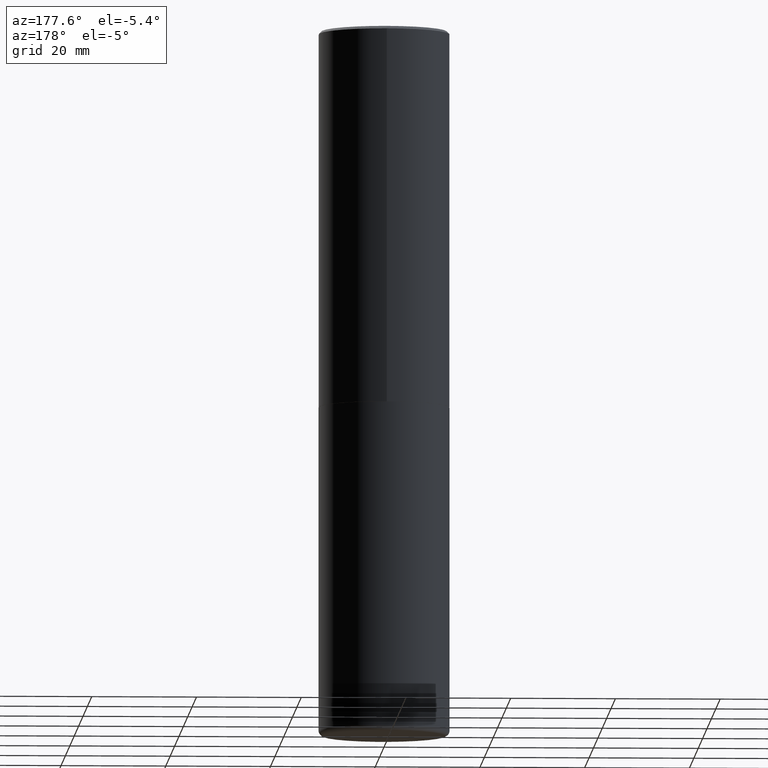
[diagram: clean part render]
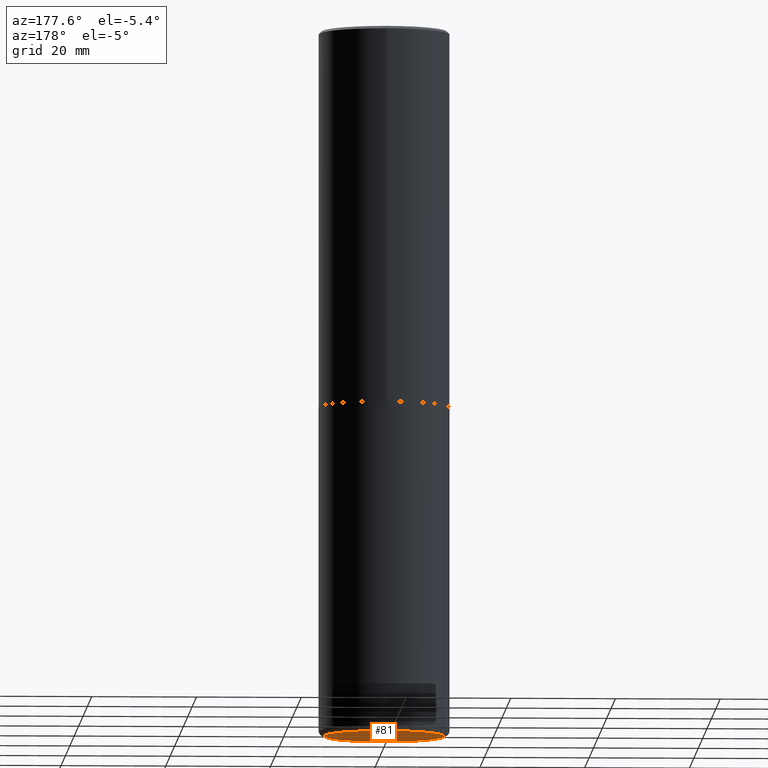
[diagram: same view with one face highlighted and labeled with its STEP entity id]
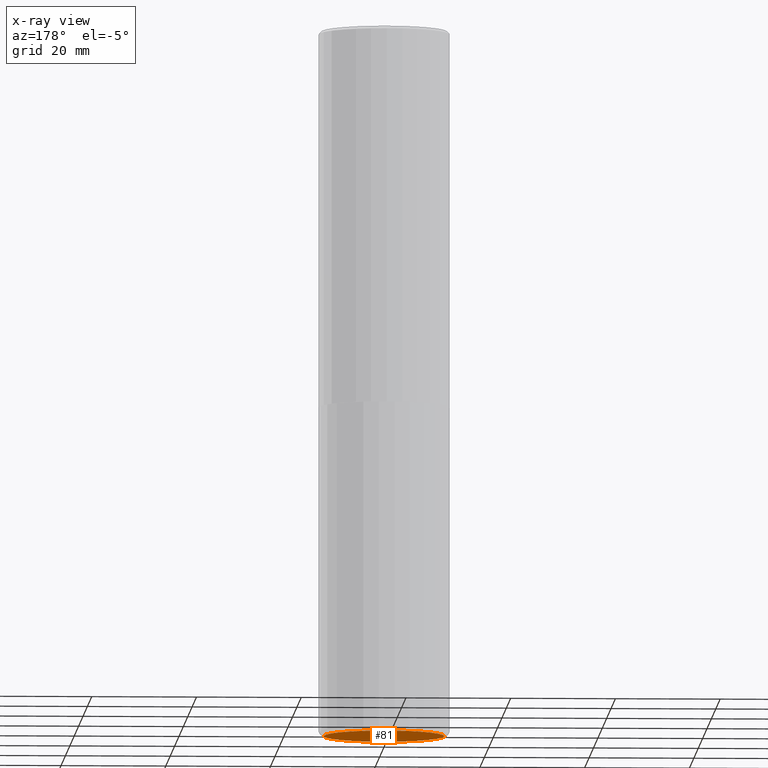
[diagram: x-ray of the same camera — body ghosted, the highlighted face saturated]
A machine part, auxiliary view. The second image highlights one B-rep face of the part: STEP entity #81.
The next image is the same camera in x-ray: the body ghosted, the highlighted face saturated — about 0% of this face is hidden behind the body in this view.
In plain terms, the highlighted planar face has unit normal (0, -0, -1).
Its self-contained STEP definition (entity closure, byte-faithful):
#62 = DIRECTION ( 'NONE',  ( 2.438088387897960049E-29, -3.491481338843145188E-15, -1.000000000000000000 ) ) ;
#78 = EDGE_CURVE ( 'NONE', #289, #105, #287, .T. ) ;
#81 = ADVANCED_FACE ( 'NONE', ( #392 ), #356, .T. ) ;
#105 = VERTEX_POINT ( 'NONE', #221 ) ;
#120 = CARTESIAN_POINT ( 'NONE',  ( 1.299766670487400442E-28, -1.855722331595132604E-14, -5.315000000000001279 ) ) ;
#122 = DIRECTION ( 'NONE',  ( -2.445468806185136597E-29, 3.491481338843145583E-15, 1.000000000000000000 ) ) ;
#144 = EDGE_CURVE ( 'NONE', #105, #289, #184, .T. ) ;
#147 = AXIS2_PLACEMENT_3D ( 'NONE', #166, #62, #188 ) ;
#152 = ORIENTED_EDGE ( 'NONE', *, *, #144, .F. ) ;
#166 = CARTESIAN_POINT ( 'NONE',  ( 4.039873082139847440E-29, -3.138529362965696164E-14, -5.315000000000001279 ) ) ;
#184 = CIRCLE ( 'NONE', #381, 0.4527499999999999858 ) ;
#188 = DIRECTION ( 'NONE',  ( -1.000000000000000000, 6.982962677686265922E-15, -4.876176775795935793E-29 ) ) ;
#194 = CARTESIAN_POINT ( 'NONE',  ( 1.299766670487400442E-28, -1.855722331595132604E-14, -5.315000000000001279 ) ) ;
#221 = CARTESIAN_POINT ( 'NONE',  ( 0.4527499999999999858, -2.171875966827378497E-14, -5.315000000000001279 ) ) ;
#239 = ORIENTED_EDGE ( 'NONE', *, *, #78, .F. ) ;
#262 = DIRECTION ( 'NONE',  ( -2.445468806185136597E-29, 3.491481338843145583E-15, 1.000000000000000000 ) ) ;
#275 = EDGE_LOOP ( 'NONE', ( #152, #239 ) ) ;
#287 = CIRCLE ( 'NONE', #310, 0.4527499999999999858 ) ;
#289 = VERTEX_POINT ( 'NONE', #409 ) ;
#310 = AXIS2_PLACEMENT_3D ( 'NONE', #194, #262, #362 ) ;
#330 = DIRECTION ( 'NONE',  ( 1.000000000000000000, -6.982962677686269077E-15, 0.000000000000000000 ) ) ;
#356 = PLANE ( 'NONE',  #147 ) ;
#362 = DIRECTION ( 'NONE',  ( 1.000000000000000000, -6.982962677686269077E-15, 0.000000000000000000 ) ) ;
#381 = AXIS2_PLACEMENT_3D ( 'NONE', #120, #122, #330 ) ;
#392 = FACE_OUTER_BOUND ( 'NONE', #275, .T. ) ;
#409 = CARTESIAN_POINT ( 'NONE',  ( -0.4527499999999999858, -1.513148197847751654E-14, -5.315000000000001279 ) ) ;